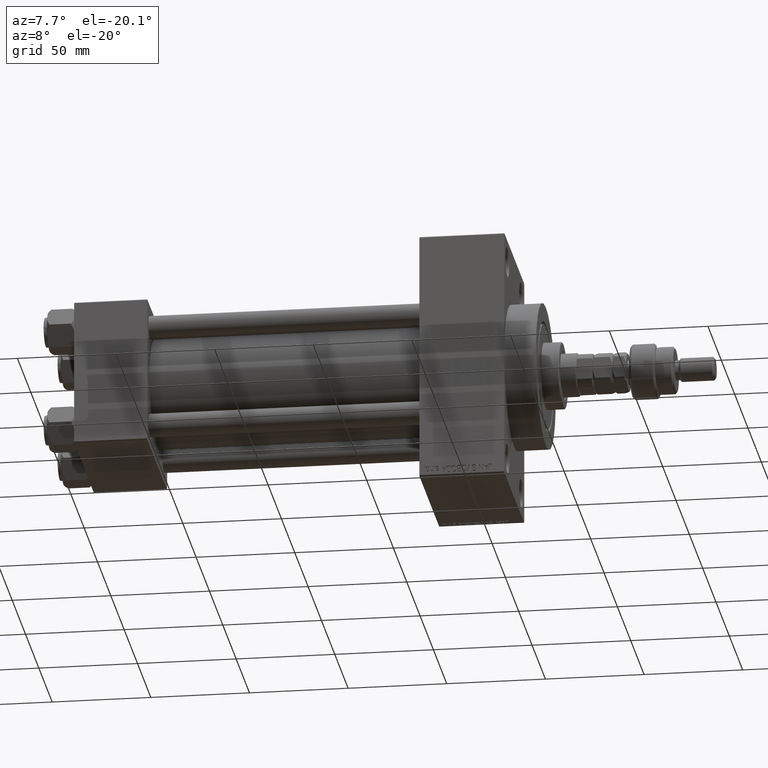
[diagram: clean part render]
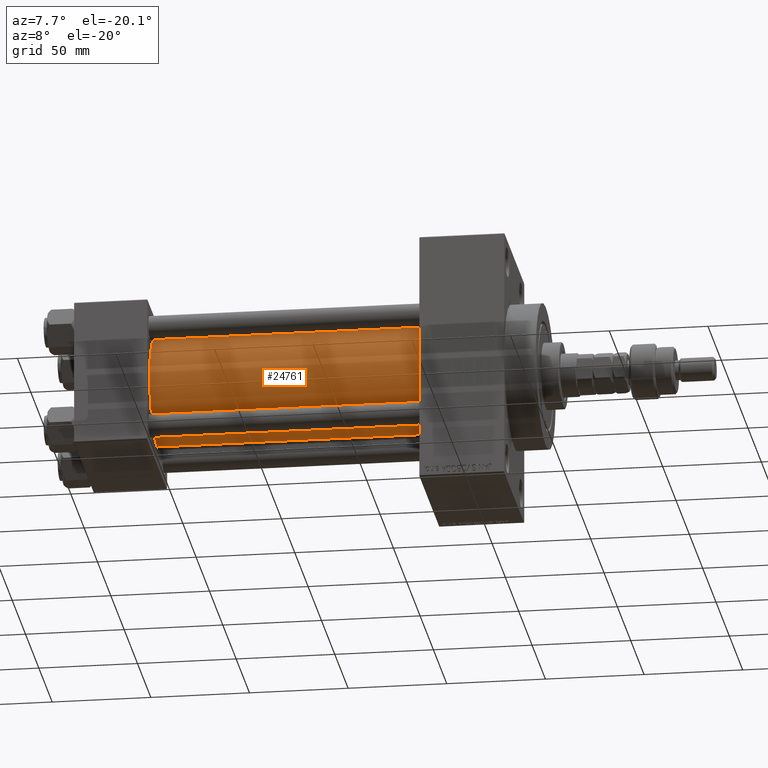
[diagram: same view with one face highlighted and labeled with its STEP entity id]
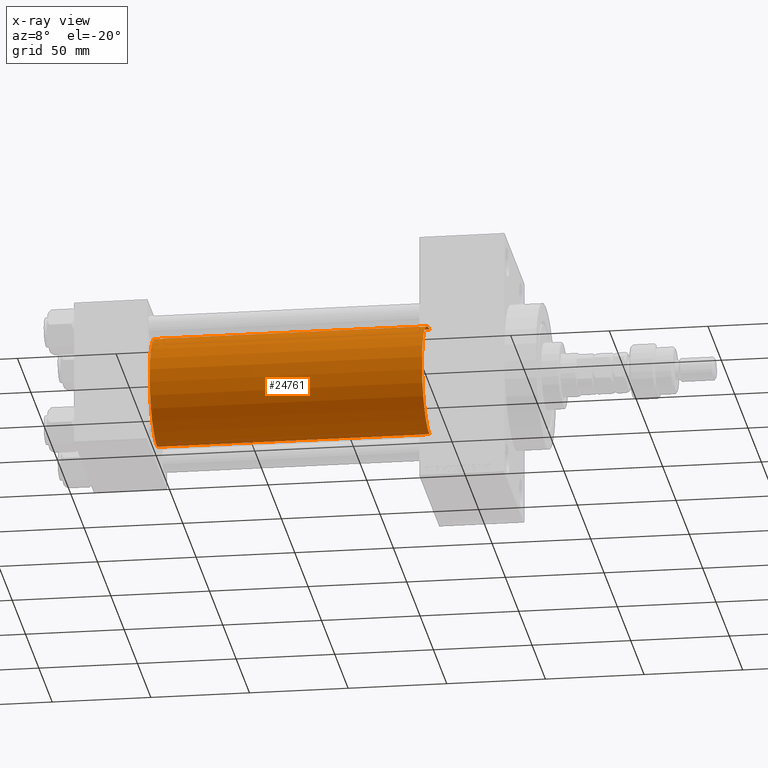
[diagram: x-ray of the same camera — body ghosted, the highlighted face saturated]
A machine part, auxiliary view. The second image highlights one B-rep face of the part: STEP entity #24761.
The next image is the same camera in x-ray: the body ghosted, the highlighted face saturated — about 0% of this face is hidden behind the body in this view.
In plain terms, the highlighted cylindrical surface (partial cylindrical patch) has radius 28 mm, axis along (-1, -0, -0).
Its self-contained STEP definition (entity closure, byte-faithful):
#707 = CARTESIAN_POINT ( 'NONE',  ( 175.0000000000000284, -2.602085213965210642E-15, 0.000000000000000000 ) ) ;
#943 = CIRCLE ( 'NONE', #24496, 28.00000000000000000 ) ;
#2987 = VERTEX_POINT ( 'NONE', #13036 ) ;
#3016 = CARTESIAN_POINT ( 'NONE',  ( 37.00000000000000711, -2.602085213965210642E-15, 28.00000000000000000 ) ) ;
#3335 = DIRECTION ( 'NONE',  ( 0.000000000000000000, 0.000000000000000000, 1.000000000000000000 ) ) ;
#4160 = CARTESIAN_POINT ( 'NONE',  ( 175.0000000000000284, 8.269258236473784371E-16, -28.00000000000000000 ) ) ;
#4920 = ORIENTED_EDGE ( 'NONE', *, *, #47349, .T. ) ;
#5179 = VECTOR ( 'NONE', #46459, 1000.000000000000000 ) ;
#6263 = DIRECTION ( 'NONE',  ( -1.000000000000000000, -0.000000000000000000, -0.000000000000000000 ) ) ;
#7134 = CARTESIAN_POINT ( 'NONE',  ( 37.00000000000000711, -2.602085213965210642E-15, 0.000000000000000000 ) ) ;
#7136 = DIRECTION ( 'NONE',  ( 1.000000000000000000, 0.000000000000000000, 0.000000000000000000 ) ) ;
#7758 = CARTESIAN_POINT ( 'NONE',  ( 175.0000000000000284, -2.602085213965210642E-15, 28.00000000000000000 ) ) ;
#7941 = EDGE_LOOP ( 'NONE', ( #40005, #39263, #43020, #4920 ) ) ;
#8819 = CYLINDRICAL_SURFACE ( 'NONE', #11779, 28.00000000000000000 ) ;
#9202 = EDGE_CURVE ( 'NONE', #46788, #20414, #943, .T. ) ;
#11420 = LINE ( 'NONE', #11666, #5179 ) ;
#11666 = CARTESIAN_POINT ( 'NONE',  ( 175.0000000000000284, -2.602085213965210642E-15, 28.00000000000000000 ) ) ;
#11779 = AXIS2_PLACEMENT_3D ( 'NONE', #707, #16199, #32678 ) ;
#13036 = CARTESIAN_POINT ( 'NONE',  ( 37.00000000000000711, 8.269258236473784371E-16, -28.00000000000000000 ) ) ;
#15254 = DIRECTION ( 'NONE',  ( 0.000000000000000000, 0.000000000000000000, -1.000000000000000000 ) ) ;
#16199 = DIRECTION ( 'NONE',  ( -1.000000000000000000, -0.000000000000000000, -0.000000000000000000 ) ) ;
#18513 = AXIS2_PLACEMENT_3D ( 'NONE', #7134, #38598, #3335 ) ;
#20414 = VERTEX_POINT ( 'NONE', #4160 ) ;
#21034 = EDGE_CURVE ( 'NONE', #46788, #28193, #11420, .T. ) ;
#21754 = CIRCLE ( 'NONE', #18513, 28.00000000000000000 ) ;
#24496 = AXIS2_PLACEMENT_3D ( 'NONE', #30243, #7136, #15254 ) ;
#24761 = ADVANCED_FACE ( 'NONE', ( #47176 ), #8819, .T. ) ;
#28193 = VERTEX_POINT ( 'NONE', #3016 ) ;
#29131 = LINE ( 'NONE', #41044, #48500 ) ;
#30243 = CARTESIAN_POINT ( 'NONE',  ( 175.0000000000000284, -2.602085213965210642E-15, 0.000000000000000000 ) ) ;
#32678 = DIRECTION ( 'NONE',  ( 0.000000000000000000, 0.000000000000000000, 1.000000000000000000 ) ) ;
#35174 = EDGE_CURVE ( 'NONE', #20414, #2987, #29131, .T. ) ;
#38598 = DIRECTION ( 'NONE',  ( 1.000000000000000000, -0.000000000000000000, 0.000000000000000000 ) ) ;
#39263 = ORIENTED_EDGE ( 'NONE', *, *, #9202, .F. ) ;
#40005 = ORIENTED_EDGE ( 'NONE', *, *, #35174, .F. ) ;
#41044 = CARTESIAN_POINT ( 'NONE',  ( 175.0000000000000284, 8.269258236473784371E-16, -28.00000000000000000 ) ) ;
#43020 = ORIENTED_EDGE ( 'NONE', *, *, #21034, .T. ) ;
#46459 = DIRECTION ( 'NONE',  ( -1.000000000000000000, -0.000000000000000000, -0.000000000000000000 ) ) ;
#46788 = VERTEX_POINT ( 'NONE', #7758 ) ;
#47176 = FACE_OUTER_BOUND ( 'NONE', #7941, .T. ) ;
#47349 = EDGE_CURVE ( 'NONE', #28193, #2987, #21754, .T. ) ;
#48500 = VECTOR ( 'NONE', #6263, 1000.000000000000000 ) ;